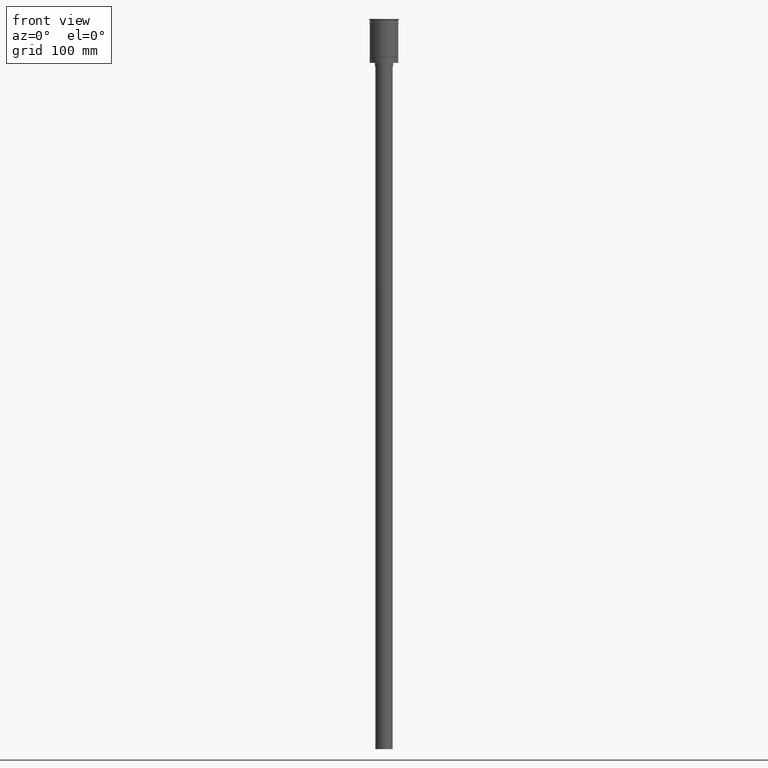
[diagram: clean part render]
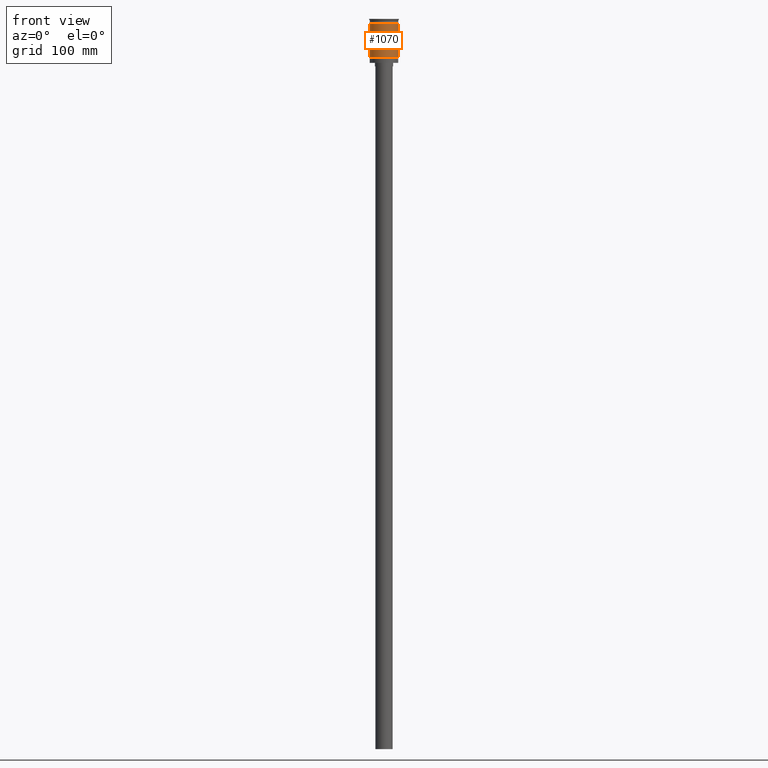
[diagram: same view with one face highlighted and labeled with its STEP entity id]
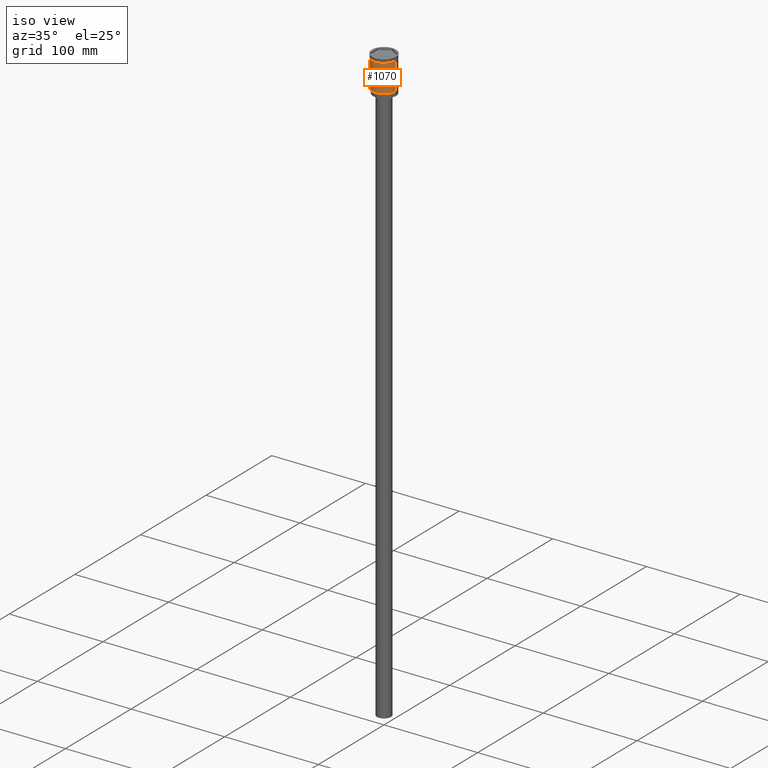
[diagram: same view with one face highlighted and labeled with its STEP entity id]
A machine part, front view. The second image highlights one B-rep face of the part: STEP entity #1070.
A second angle (iso view) of the same face is appended — the face is thin or edge-on in the first view.
In plain terms, the highlighted cylindrical surface (edge-blend (fillet) strip) has radius 12.5 mm, axis along (-0, -0, 1).
Its self-contained STEP definition (entity closure, byte-faithful):
#62 = LINE ( 'NONE', #1171, #346 ) ;
#84 = DIRECTION ( 'NONE',  ( -1.000000000000000000, 0.000000000000000000, 0.000000000000000000 ) ) ;
#125 = LINE ( 'NONE', #130, #1309 ) ;
#130 = CARTESIAN_POINT ( 'NONE',  ( 12.49999999999999645, 0.000000000000000000, 0.000000000000000000 ) ) ;
#182 = VERTEX_POINT ( 'NONE', #1554 ) ;
#226 = DIRECTION ( 'NONE',  ( -0.000000000000000000, -0.000000000000000000, 1.000000000000000000 ) ) ;
#284 = ORIENTED_EDGE ( 'NONE', *, *, #1249, .T. ) ;
#346 = VECTOR ( 'NONE', #1022, 1000.000000000000000 ) ;
#403 = FACE_OUTER_BOUND ( 'NONE', #536, .T. ) ;
#425 = AXIS2_PLACEMENT_3D ( 'NONE', #1279, #888, #802 ) ;
#482 = DIRECTION ( 'NONE',  ( 1.000000000000000000, 0.000000000000000000, 0.000000000000000000 ) ) ;
#495 = DIRECTION ( 'NONE',  ( -0.000000000000000000, -0.000000000000000000, 1.000000000000000000 ) ) ;
#536 = EDGE_LOOP ( 'NONE', ( #1291, #284, #980, #736 ) ) ;
#628 = CIRCLE ( 'NONE', #756, 12.49999999999999645 ) ;
#736 = ORIENTED_EDGE ( 'NONE', *, *, #1298, .F. ) ;
#756 = AXIS2_PLACEMENT_3D ( 'NONE', #1063, #226, #84 ) ;
#802 = DIRECTION ( 'NONE',  ( 1.000000000000000000, 0.000000000000000000, 0.000000000000000000 ) ) ;
#827 = VERTEX_POINT ( 'NONE', #947 ) ;
#867 = CARTESIAN_POINT ( 'NONE',  ( -12.50000000000000000, 1.530808498934191521E-15, -3.999999999999996447 ) ) ;
#888 = DIRECTION ( 'NONE',  ( -0.000000000000000000, -0.000000000000000000, 1.000000000000000000 ) ) ;
#918 = CYLINDRICAL_SURFACE ( 'NONE', #425, 12.49999999999999645 ) ;
#947 = CARTESIAN_POINT ( 'NONE',  ( 12.49999999999999822, 0.000000000000000000, -3.999999999999996447 ) ) ;
#980 = ORIENTED_EDGE ( 'NONE', *, *, #1386, .T. ) ;
#1022 = DIRECTION ( 'NONE',  ( -0.000000000000000000, -0.000000000000000000, 1.000000000000000000 ) ) ;
#1063 = CARTESIAN_POINT ( 'NONE',  ( 0.000000000000000000, 0.000000000000000000, -33.30000000000005400 ) ) ;
#1070 = ADVANCED_FACE ( 'NONE', ( #403 ), #918, .T. ) ;
#1072 = CIRCLE ( 'NONE', #1177, 12.49999999999999822 ) ;
#1107 = EDGE_CURVE ( 'NONE', #182, #1394, #62, .T. ) ;
#1171 = CARTESIAN_POINT ( 'NONE',  ( -12.49999999999999645, 1.530808498934191127E-15, 0.000000000000000000 ) ) ;
#1177 = AXIS2_PLACEMENT_3D ( 'NONE', #1445, #495, #482 ) ;
#1239 = DIRECTION ( 'NONE',  ( -0.000000000000000000, -0.000000000000000000, 1.000000000000000000 ) ) ;
#1249 = EDGE_CURVE ( 'NONE', #182, #1473, #628, .T. ) ;
#1279 = CARTESIAN_POINT ( 'NONE',  ( 0.000000000000000000, 0.000000000000000000, 0.000000000000000000 ) ) ;
#1291 = ORIENTED_EDGE ( 'NONE', *, *, #1107, .F. ) ;
#1298 = EDGE_CURVE ( 'NONE', #1394, #827, #1072, .T. ) ;
#1309 = VECTOR ( 'NONE', #1239, 1000.000000000000000 ) ;
#1386 = EDGE_CURVE ( 'NONE', #1473, #827, #125, .T. ) ;
#1388 = CARTESIAN_POINT ( 'NONE',  ( 12.49999999999999645, 1.530808498934191127E-15, -33.30000000000005400 ) ) ;
#1394 = VERTEX_POINT ( 'NONE', #867 ) ;
#1445 = CARTESIAN_POINT ( 'NONE',  ( 0.000000000000000000, 0.000000000000000000, -3.999999999999996447 ) ) ;
#1473 = VERTEX_POINT ( 'NONE', #1388 ) ;
#1554 = CARTESIAN_POINT ( 'NONE',  ( -12.49999999999999289, 0.000000000000000000, -33.30000000000005400 ) ) ;